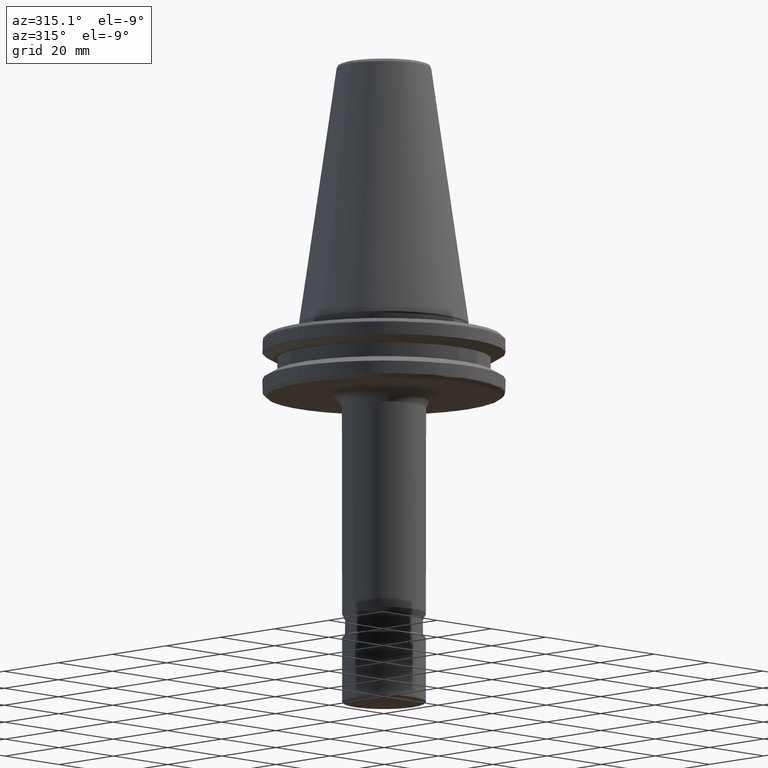
[diagram: clean part render]
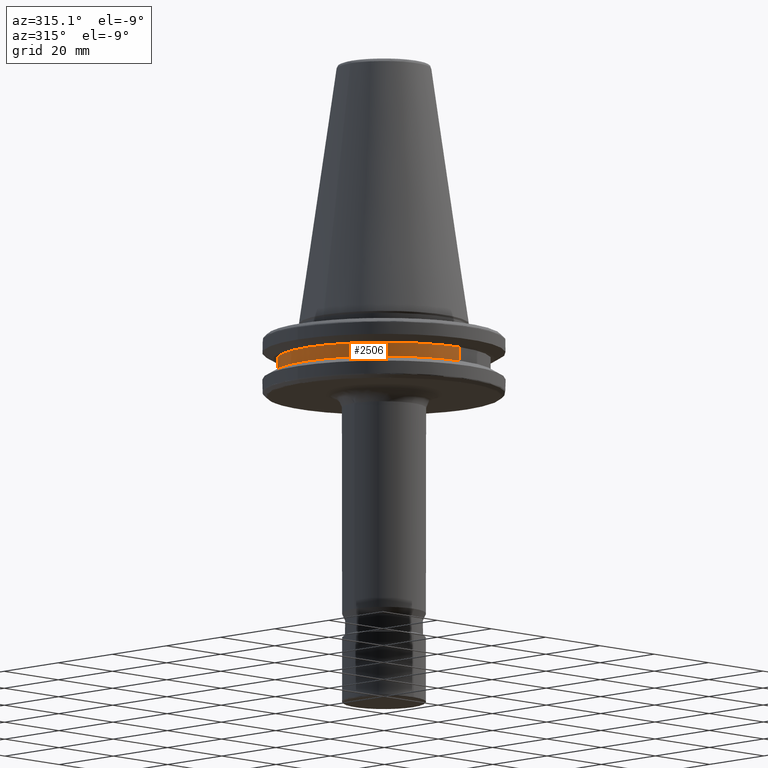
[diagram: same view with one face highlighted and labeled with its STEP entity id]
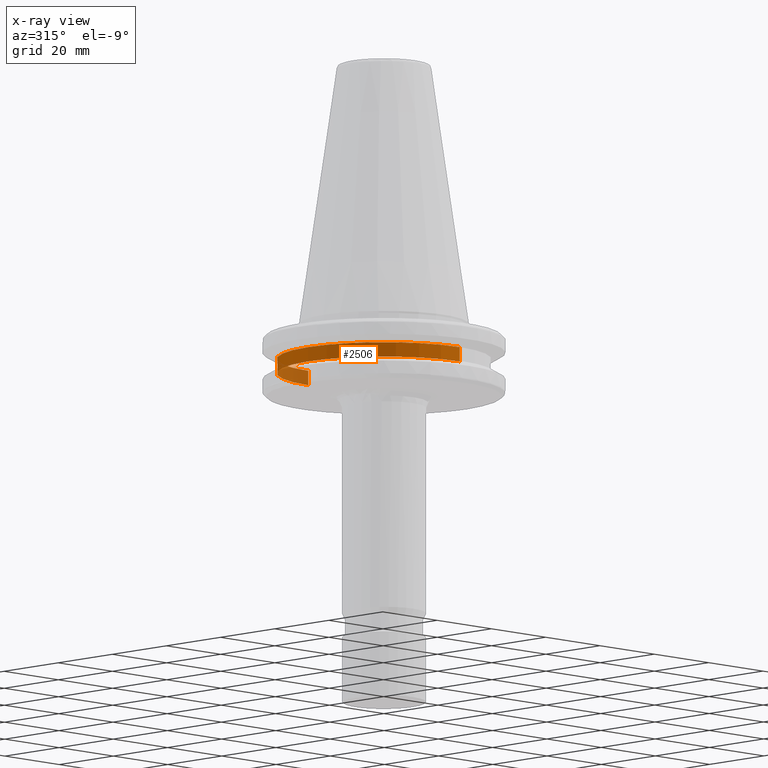
[diagram: x-ray of the same camera — body ghosted, the highlighted face saturated]
A machine part, auxiliary view. The second image highlights one B-rep face of the part: STEP entity #2506.
The next image is the same camera in x-ray: the body ghosted, the highlighted face saturated — about 13% of this face is hidden behind the body in this view.
In plain terms, the highlighted cylindrical surface (partial cylindrical patch) has radius 28 mm, axis along (0, -0, 1).
Its self-contained STEP definition (entity closure, byte-faithful):
#86 = LINE ( 'NONE', #778, #2099 ) ;
#394 = EDGE_CURVE ( 'NONE', #2230, #1198, #86, .T. ) ;
#418 = ORIENTED_EDGE ( 'NONE', *, *, #394, .T. ) ;
#458 = AXIS2_PLACEMENT_3D ( 'NONE', #2592, #2581, #1979 ) ;
#660 = VERTEX_POINT ( 'NONE', #2254 ) ;
#778 = CARTESIAN_POINT ( 'NONE',  ( 0.0000000000000000000, -28.00000000000000000, -13.00000000000000400 ) ) ;
#798 = CARTESIAN_POINT ( 'NONE',  ( 0.0000000000000000000, -28.00000000000000000, -13.00000000360000200 ) ) ;
#829 = EDGE_CURVE ( 'NONE', #660, #1198, #2898, .T. ) ;
#1198 = VERTEX_POINT ( 'NONE', #2605 ) ;
#1451 = AXIS2_PLACEMENT_3D ( 'NONE', #2553, #2822, #1526 ) ;
#1471 = CIRCLE ( 'NONE', #458, 28.00000000000000000 ) ;
#1526 = DIRECTION ( 'NONE',  ( 0.0000000000000000000, -1.000000000000000000, -6.195440985631454100E-017 ) ) ;
#1579 = DIRECTION ( 'NONE',  ( 0.0000000000000000000, -3.097720492815727700E-017, 1.000000000000000000 ) ) ;
#1692 = EDGE_CURVE ( 'NONE', #2230, #2781, #1471, .T. ) ;
#1753 = CARTESIAN_POINT ( 'NONE',  ( 3.429011037612589300E-015, 28.00000000000000000, -13.00000000360000000 ) ) ;
#1768 = DIRECTION ( 'NONE',  ( 0.0000000000000000000, -3.097720492815727700E-017, 1.000000000000000000 ) ) ;
#1869 = ORIENTED_EDGE ( 'NONE', *, *, #829, .F. ) ;
#1979 = DIRECTION ( 'NONE',  ( 0.0000000000000000000, -1.000000000000000000, -6.195440985631454100E-017 ) ) ;
#2019 = DIRECTION ( 'NONE',  ( 0.0000000000000000000, -1.000000000000000000, -6.195440985631454100E-017 ) ) ;
#2099 = VECTOR ( 'NONE', #2862, 1000.000000000000000 ) ;
#2230 = VERTEX_POINT ( 'NONE', #798 ) ;
#2254 = CARTESIAN_POINT ( 'NONE',  ( 3.429011037612589300E-015, 28.00000000000000000, -9.200000003449996900 ) ) ;
#2257 = FACE_OUTER_BOUND ( 'NONE', #2628, .T. ) ;
#2297 = CARTESIAN_POINT ( 'NONE',  ( 0.0000000000000000000, 0.0000000000000000000, -13.00000000000000200 ) ) ;
#2506 = ADVANCED_FACE ( 'NONE', ( #2257 ), #3259, .T. ) ;
#2553 = CARTESIAN_POINT ( 'NONE',  ( 0.0000000000000000000, -1.177133786201263800E-016, -9.200000003449996900 ) ) ;
#2581 = DIRECTION ( 'NONE',  ( -0.0000000000000000000, 3.097720492815727700E-017, -1.000000000000000000 ) ) ;
#2583 = AXIS2_PLACEMENT_3D ( 'NONE', #2297, #1768, #2019 ) ;
#2592 = CARTESIAN_POINT ( 'NONE',  ( 0.0000000000000000000, 1.115178739458694700E-025, -13.00000000360000000 ) ) ;
#2605 = CARTESIAN_POINT ( 'NONE',  ( 0.0000000000000000000, -28.00000000000000000, -9.200000003449998700 ) ) ;
#2628 = EDGE_LOOP ( 'NONE', ( #2989, #2894, #418, #1869 ) ) ;
#2652 = EDGE_CURVE ( 'NONE', #2781, #660, #2899, .T. ) ;
#2773 = VECTOR ( 'NONE', #1579, 1000.000000000000000 ) ;
#2781 = VERTEX_POINT ( 'NONE', #1753 ) ;
#2786 = CARTESIAN_POINT ( 'NONE',  ( 3.429011037612589300E-015, 28.00000000000000000, -13.00000000000000000 ) ) ;
#2822 = DIRECTION ( 'NONE',  ( 0.0000000000000000000, -3.097720492815727700E-017, 1.000000000000000000 ) ) ;
#2862 = DIRECTION ( 'NONE',  ( 0.0000000000000000000, -3.097720492815727700E-017, 1.000000000000000000 ) ) ;
#2894 = ORIENTED_EDGE ( 'NONE', *, *, #1692, .F. ) ;
#2898 = CIRCLE ( 'NONE', #1451, 28.00000000000000000 ) ;
#2899 = LINE ( 'NONE', #2786, #2773 ) ;
#2989 = ORIENTED_EDGE ( 'NONE', *, *, #2652, .F. ) ;
#3259 = CYLINDRICAL_SURFACE ( 'NONE', #2583, 28.00000000000000000 ) ;